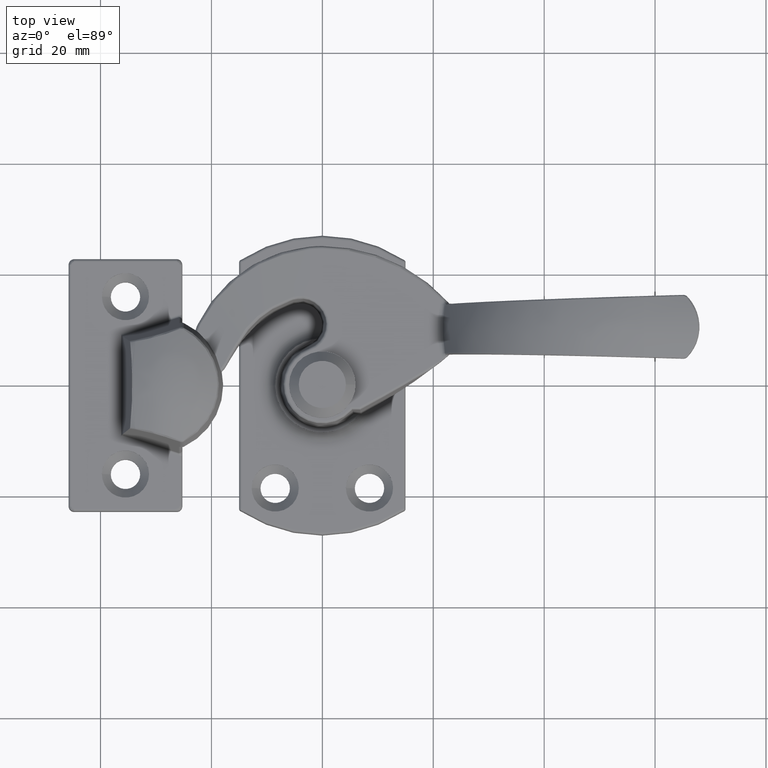
[diagram: clean part render]
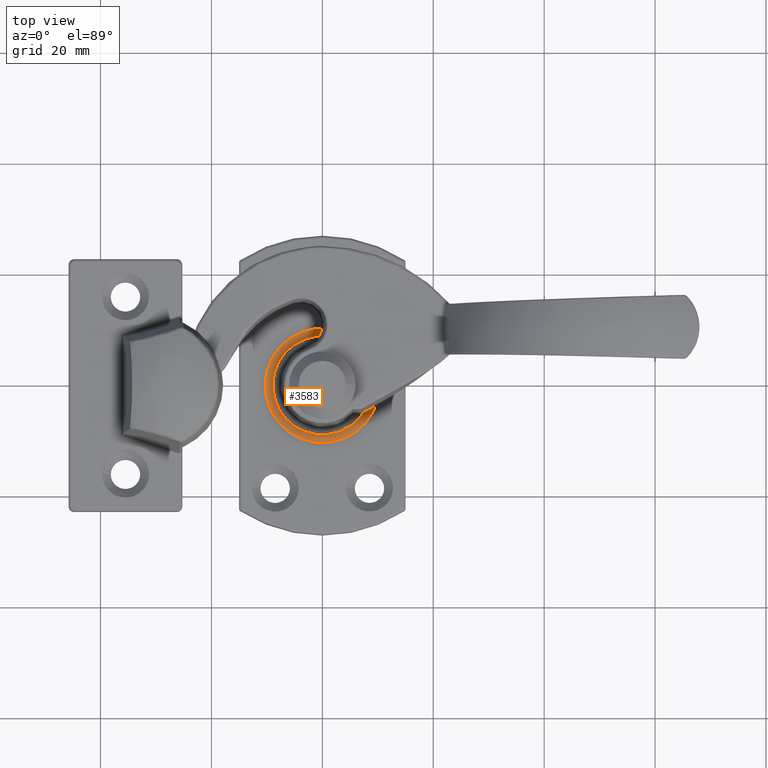
[diagram: same view with one face highlighted and labeled with its STEP entity id]
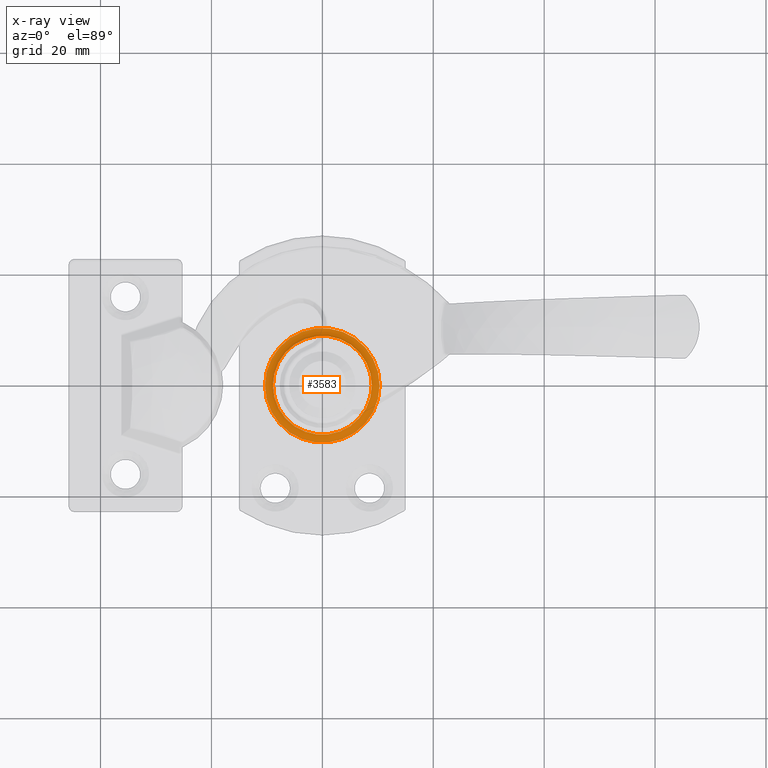
[diagram: x-ray of the same camera — body ghosted, the highlighted face saturated]
A machine part, top view. The second image highlights one B-rep face of the part: STEP entity #3583.
The next image is the same camera in x-ray: the body ghosted, the highlighted face saturated — about 0% of this face is hidden behind the body in this view.
In plain terms, the highlighted toroidal blend (fillet) surface has major radius 10.3284 mm and minor (blend) radius 2 mm.
Its self-contained STEP definition (entity closure, byte-faithful):
#254=FACE_BOUND('',#1150,.T.);
#357=TOROIDAL_SURFACE('',#3911,10.3284271247462,2.00000000000001);
#898=FACE_OUTER_BOUND('',#1149,.T.);
#1149=EDGE_LOOP('',(#2713));
#1150=EDGE_LOOP('',(#2714));
#1381=CIRCLE('',#3795,10.3284271247462);
#1449=CIRCLE('',#3912,8.9142135623731);
#1611=VERTEX_POINT('',#5355);
#1695=VERTEX_POINT('',#5604);
#1972=EDGE_CURVE('',#1611,#1611,#1381,.T.);
#2088=EDGE_CURVE('',#1695,#1695,#1449,.T.);
#2713=ORIENTED_EDGE('',*,*,#2088,.F.);
#2714=ORIENTED_EDGE('',*,*,#1972,.T.);
#3583=ADVANCED_FACE('',(#898,#254),#357,.F.);
#3795=AXIS2_PLACEMENT_3D('',#5356,#4291,#4292);
#3911=AXIS2_PLACEMENT_3D('',#5603,#4571,#4572);
#3912=AXIS2_PLACEMENT_3D('',#5605,#4573,#4574);
#4291=DIRECTION('center_axis',(0.,0.,1.));
#4292=DIRECTION('ref_axis',(1.,0.,0.));
#4571=DIRECTION('center_axis',(0.,0.,1.));
#4572=DIRECTION('ref_axis',(1.,0.,0.));
#4573=DIRECTION('center_axis',(0.,0.,1.));
#4574=DIRECTION('ref_axis',(1.,0.,0.));
#5355=CARTESIAN_POINT('',(-10.3284271247462,-1.26486752185471E-15,5.));
#5356=CARTESIAN_POINT('Origin',(0.,0.,5.));
#5603=CARTESIAN_POINT('Origin',(0.,0.,7.00000000000001));
#5604=CARTESIAN_POINT('',(-8.9142135623731,-1.09167631060761E-15,5.5857864376269));
#5605=CARTESIAN_POINT('Origin',(0.,0.,5.5857864376269));